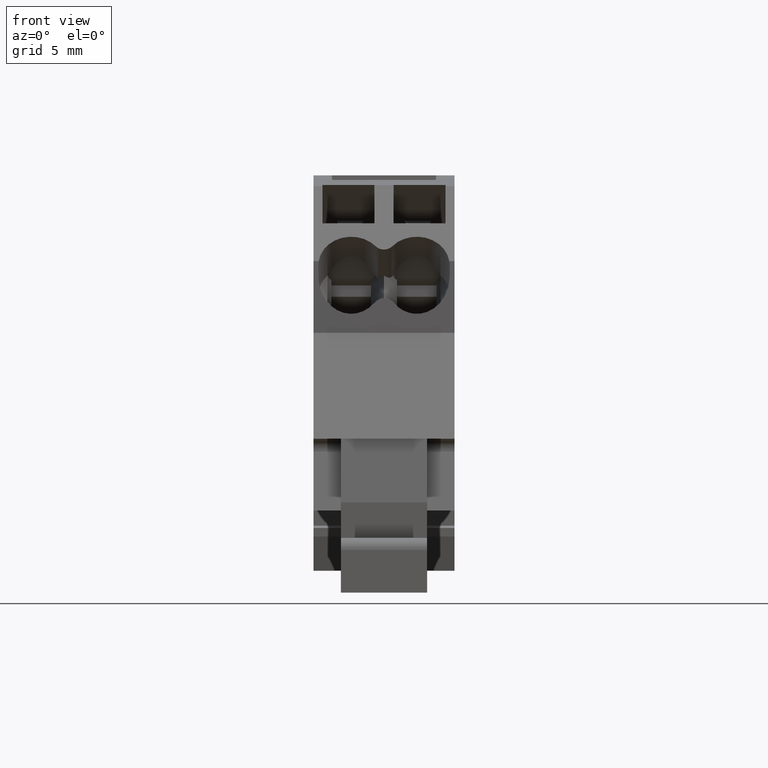
[diagram: clean part render]
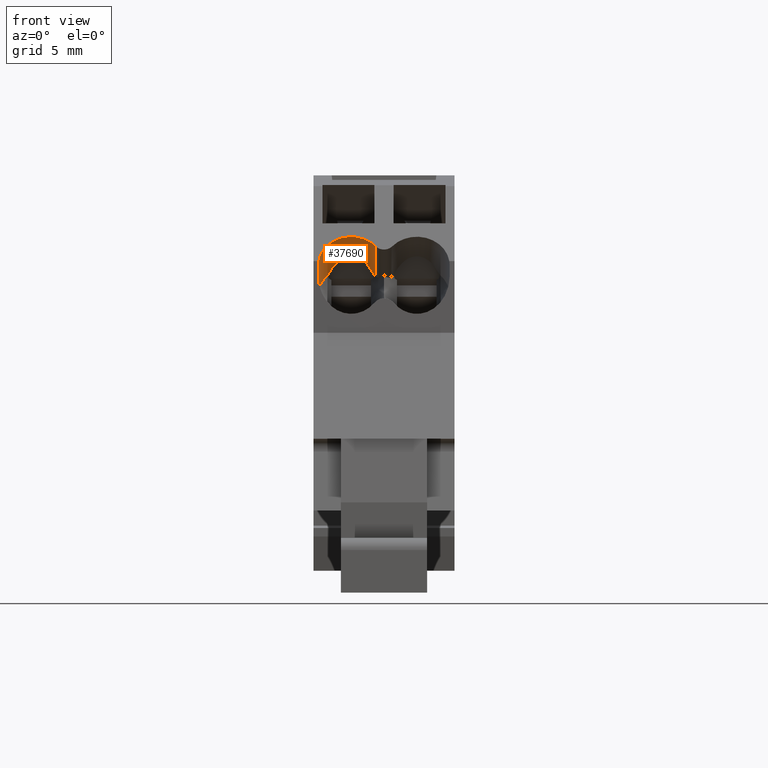
[diagram: same view with one face highlighted and labeled with its STEP entity id]
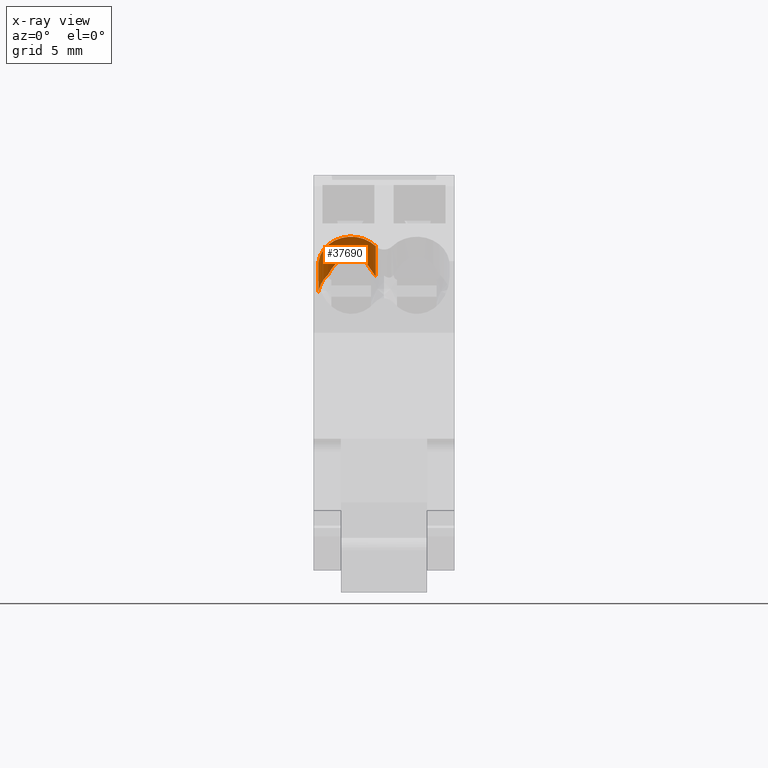
[diagram: x-ray of the same camera — body ghosted, the highlighted face saturated]
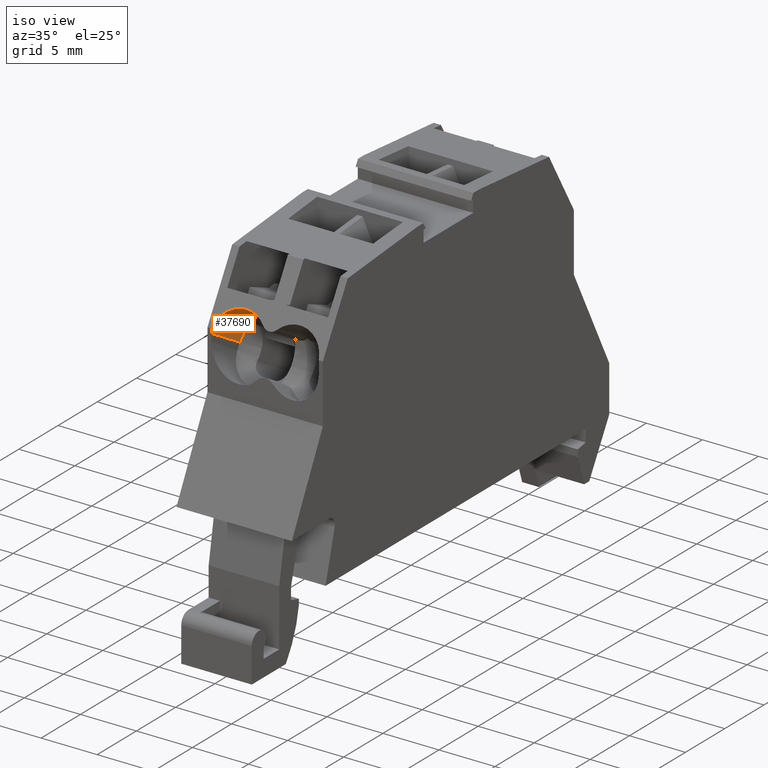
[diagram: same view with one face highlighted and labeled with its STEP entity id]
A machine part, front view. The second image highlights one B-rep face of the part: STEP entity #37690.
The next image is the same camera in x-ray: the body ghosted, the highlighted face saturated — about 0% of this face is hidden behind the body in this view.
A second angle (iso view) of the same face is appended — the face is thin or edge-on in the first view.
In plain terms, the highlighted cylindrical surface (edge-blend (fillet) strip) has radius 2.4 mm, axis along (-0, -0.866, 0.5).
Its self-contained STEP definition (entity closure, byte-faithful):
#13170=CARTESIAN_POINT('',(77.9035663599236,135.900297329964,
9.52554644414568));
#13180=VERTEX_POINT('',#13170);
#13210=CARTESIAN_POINT('',(78.2452959192303,135.702999676908,
7.15000000000476));
#13220=DIRECTION('',(-0.500000000000392,-0.866025403784213,
3.82523821563007E-18));
#13230=DIRECTION('',(0.866025403784213,-0.500000000000392,
-8.5907753966652E-13));
#13240=AXIS2_PLACEMENT_3D('',#13210,#13220,#13230);
#13250=ELLIPSE('',#13240,2.77128129211137,2.4);
#13260=CARTESIAN_POINT('',(78.2452959192332,135.702999676906,
9.55000000000476));
#13270=VERTEX_POINT('',#13260);
#13280=EDGE_CURVE('',#13270,#13180,#13250,.T.);
#19990=CARTESIAN_POINT('',(78.2452959192362,135.900297329964,
7.14999999999999));
#20000=DIRECTION('',(-3.12860848339369E-13,1.,-9.27355178399091E-17));
#20010=DIRECTION('',(-1.,-3.12860848339369E-13,-1.66127692230313E-16));
#20020=AXIS2_PLACEMENT_3D('',#19990,#20000,#20010);
#20030=CIRCLE('',#20020,2.4);
#20040=CARTESIAN_POINT('',(76.6578451325974,135.900297329963,
5.34999999999999));
#20050=VERTEX_POINT('',#20040);
#20060=EDGE_CURVE('',#20050,#13180,#20030,.T.);
#36930=CARTESIAN_POINT('',(78.2452959192318,131.520297329933,
9.54999999999849));
#36940=VERTEX_POINT('',#36930);
#37210=CARTESIAN_POINT('',(78.2452959192362,135.900297329964,
7.14999999999999));
#37220=DIRECTION('',(-3.12860848339369E-13,1.,-9.27355178399092E-17));
#37230=DIRECTION('',(-1.,-3.12860848339369E-13,-1.66127692230313E-16));
#37240=AXIS2_PLACEMENT_3D('',#37210,#37220,#37230);
#37250=CYLINDRICAL_SURFACE('',#37240,2.4);
#37260=ORIENTED_EDGE('',*,*,#13280,.F.);
#37270=ORIENTED_EDGE('',*,*,#20060,.T.);
#37280=CARTESIAN_POINT('',(76.6578451325913,135.900297329945,
5.35000000000502));
#37290=DIRECTION('',(-2.79276601844458E-13,1.,4.29535457080334E-13));
#37300=VECTOR('',#37290,1.);
#37310=LINE('',#37280,#37300);
#37320=CARTESIAN_POINT('',(76.6578451325937,131.520297329942,
5.35000000000444));
#37330=VERTEX_POINT('',#37320);
#37340=EDGE_CURVE('',#37330,#20050,#37310,.T.);
#37350=ORIENTED_EDGE('',*,*,#37340,.T.);
#37360=CARTESIAN_POINT('',(78.2452959192315,131.520297329944,
7.15000000000297));
#37370=DIRECTION('',(2.79276601844458E-13,-1.,-4.295436954828E-13));
#37380=DIRECTION('',(-1.,-2.79276601844458E-13,1.14959378873018E-13));
#37390=AXIS2_PLACEMENT_3D('',#37360,#37370,#37380);
#37400=CIRCLE('',#37390,2.40000000000002);
#37410=CARTESIAN_POINT('',(76.5566946738393,131.520297329943,
5.444530611814));
#37420=VERTEX_POINT('',#37410);
#37430=EDGE_CURVE('',#37420,#37330,#37400,.T.);
#37440=ORIENTED_EDGE('',*,*,#37430,.T.);
#37450=CARTESIAN_POINT('',(78.2452959192387,127.899080273201,7.15));
#37460=DIRECTION('',(0.906307787036756,0.422618261740473,
1.1625129125297E-16));
#37470=DIRECTION('',(0.422618261740473,-0.906307787036756,
1.56531190069703E-16));
#37480=AXIS2_PLACEMENT_3D('',#37450,#37460,#37470);
#37490=ELLIPSE('',#37480,5.67888379957286,2.4);
#37500=CARTESIAN_POINT('',(76.5566946738406,131.52029732994,
8.85546938818731));
#37510=VERTEX_POINT('',#37500);
#37520=EDGE_CURVE('',#37420,#37510,#37490,.T.);
#37530=ORIENTED_EDGE('',*,*,#37520,.F.);
#37540=CARTESIAN_POINT('',(78.2452959192315,131.520297329944,
7.15000000000297));
#37550=DIRECTION('',(2.79276601844458E-13,-1.,-4.295436954828E-13));
#37560=DIRECTION('',(-1.,-2.79276601844458E-13,1.14959378873018E-13));
#37570=AXIS2_PLACEMENT_3D('',#37540,#37550,#37560);
#37580=CIRCLE('',#37570,2.40000000000002);
#37590=EDGE_CURVE('',#36940,#37510,#37580,.T.);
#37600=ORIENTED_EDGE('',*,*,#37590,.T.);
#37610=CARTESIAN_POINT('',(78.2452959192306,135.900297329943,
9.55000000000485));
#37620=DIRECTION('',(2.79221090693227E-13,-1.,-4.29517560570776E-13));
#37630=VECTOR('',#37620,1.);
#37640=LINE('',#37610,#37630);
#37650=EDGE_CURVE('',#13270,#36940,#37640,.T.);
#37660=ORIENTED_EDGE('',*,*,#37650,.T.);
#37670=EDGE_LOOP('',(#37660,#37600,#37530,#37440,#37350,#37270,#37260));
#37680=FACE_OUTER_BOUND('',#37670,.T.);
#37690=ADVANCED_FACE('',(#37680),#37250,.F.);